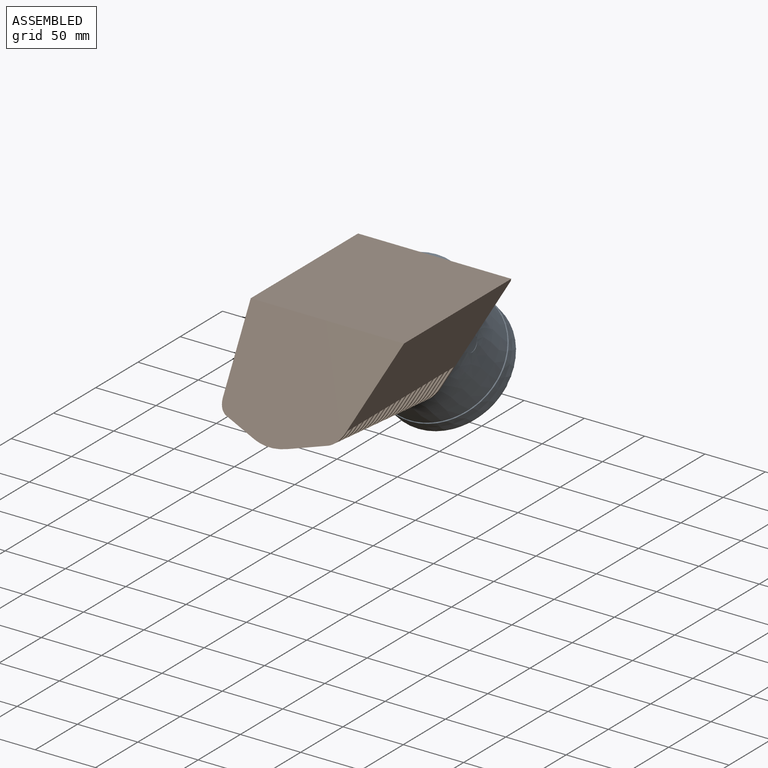
[diagram: assembled view]
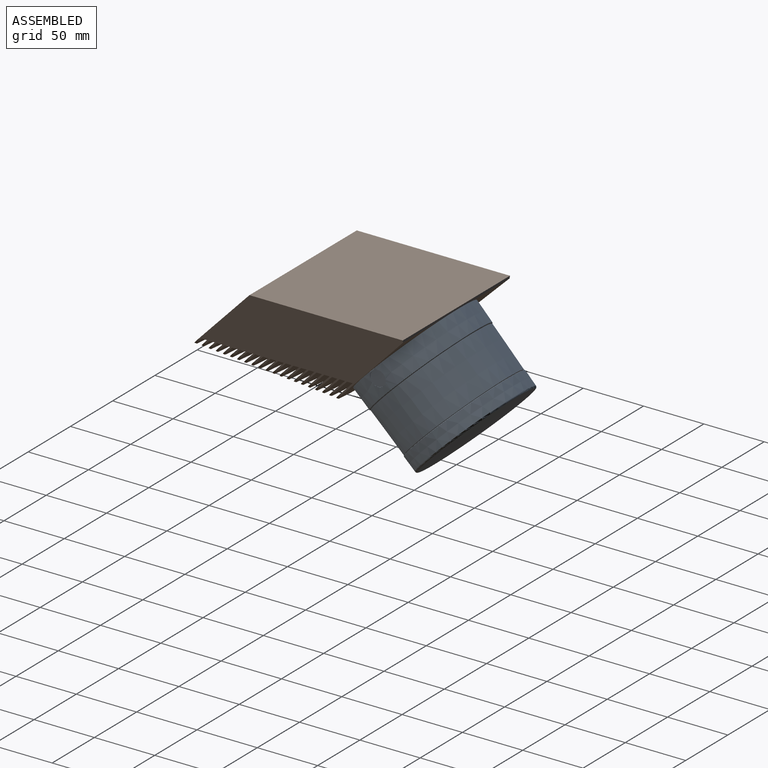
[diagram: assembled view, second angle]
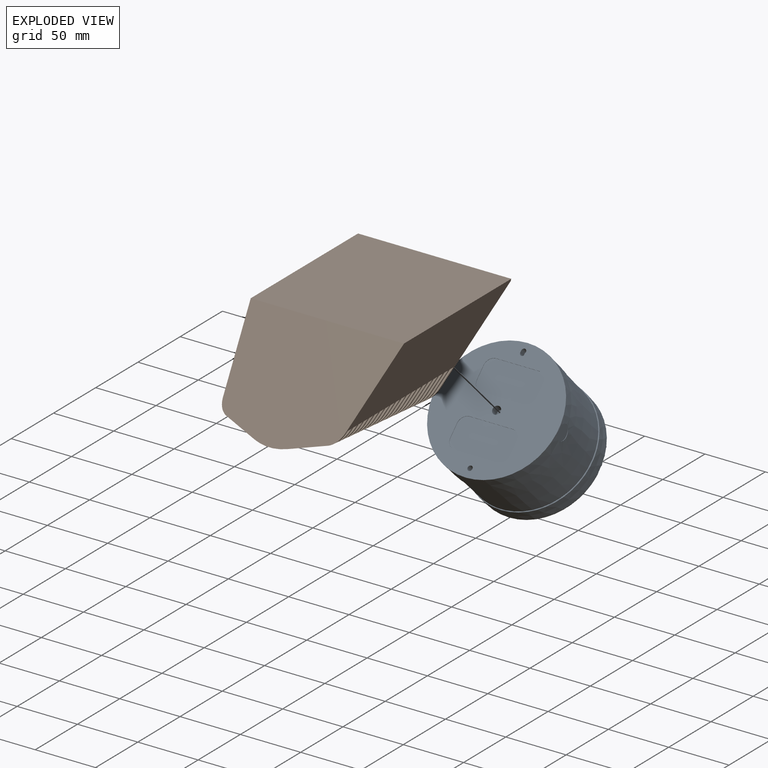
[diagram: exploded view]
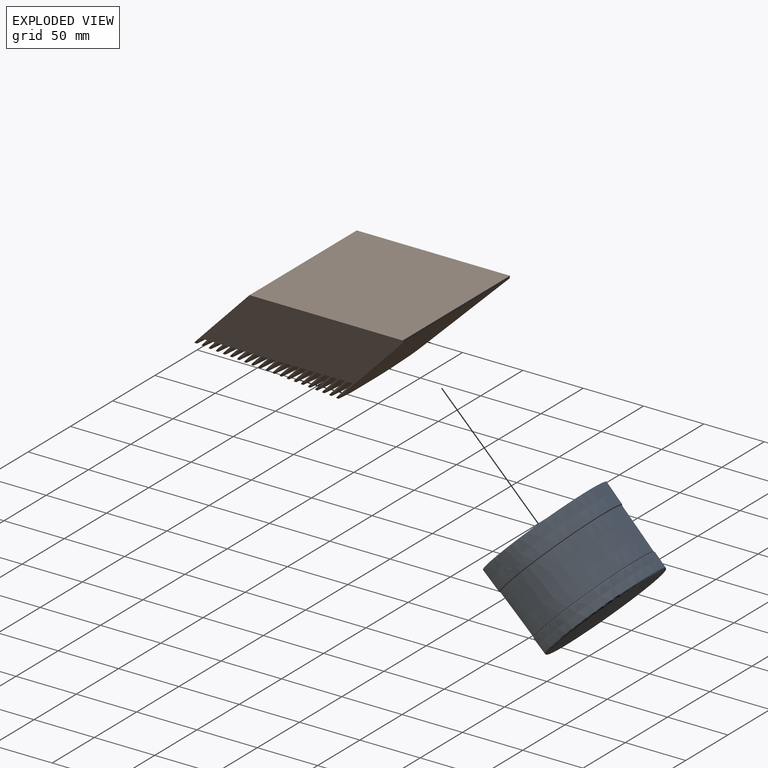
[diagram: exploded view, second angle]
ASSEMBLY  parts=2 mates=2
PART A: 44 faces, bbox 109.2x72.7x109.2 mm
  f0: cone r=51.31mm half-angle=1deg, axis (0,-1,0), area 5910.6mm2, adj f1,f2,f42
  f1: cone r=51.18mm half-angle=45deg, axis (0,-1,0), area 58.9mm2, adj f0,f14
  f2: plane 103.27x103.27mm, normal (0,-1,0), area 5897mm2, adj f0,f15,f17,f19,f20,f21,f22,f24
  f3: plane 2.66x2.66mm, normal (0,1,0), area 5.6mm2, adj f4
  f4: cone r=1.33mm half-angle=89.2deg, axis (0,-1,0), area 7589.8mm2, adj f3,f5
  f5: torus R=49.15mm, axis (0,1,0), area 614.1mm2, adj f4,f6
  f6: cone r=50.42mm half-angle=1deg, axis (0,-1,0), area 4080.4mm2, adj f5,f7
  f7: cone r=50.65mm half-angle=44deg, axis (0,1,0), area 56.1mm2, adj f6,f8
  f8: plane 101.05x101.05mm, normal (0,-1,0), area 1268.5mm2, adj f7,f9
  f9: cylinder r=46.35mm len=92.71mm, axis (0,1,0), area 145.6mm2, adj f8,f10
  f10: plane 100.27x100.27mm, normal (0,1,0), area 1145.8mm2, adj f9,f11
  f11: cone r=50.13mm half-angle=1deg, axis (0,-1,0), area 12083.2mm2, adj f10,f12
  f12: plane 101.6x101.6mm, normal (0,-1,0), area 1226.6mm2, adj f11,f13
  f13: cylinder r=46.8mm len=93.6mm, axis (0,1,0), area 147mm2, adj f12,f14
  f14: plane 102.36x102.36mm, normal (0,1,0), area 1348.7mm2, adj f1,f13
  f15: cylinder r=3.38mm len=7.14mm, axis (0,-1,0), area 151.6mm2, adj f2,f16
  f16: plane 6.76x6.76mm, normal (0,-1,0), area 35.9mm2, adj f15
  f17: cylinder r=2mm len=5.59mm, axis (0,-1,0), area 70.1mm2, adj f2,f18
  f18: plane 4x4mm, normal (0,-1,0), area 12.5mm2, adj f17
  f19: cylinder r=2mm len=5.59mm, axis (0,-1,0), area 35.1mm2, adj f2,f20,f22,f23
  f20: plane 5.59x1.52mm, normal (-1,0,0), area 8.5mm2, adj f2,f19,f21,f23
  f21: cylinder r=2mm len=5.59mm, axis (0,-1,0), area 35.1mm2, adj f2,f20,f22,f23
  f22: plane 5.59x1.52mm, normal (1,0,0), area 8.5mm2, adj f2,f19,f21,f23
  f23: plane 5.52x4mm, normal (0,-1,0), area 18.6mm2, adj f19,f20,f21,f22
  f24: cylinder r=7.14mm len=7.14mm, axis (0,-1,0), area 2.9mm2, adj f2,f25,f31,f32
  f25: plane 34.93x0.25mm, normal (0,0,1), area 8.9mm2, adj f2,f24,f26,f32
  f26: cylinder r=7.14mm len=7.14mm, axis (0,-1,0), area 2.9mm2, adj f2,f25,f27,f32
  f27: plane 11.11x0.25mm, normal (1,0,0), area 2.8mm2, adj f2,f26,f28,f32
  f28: cylinder r=7.14mm len=7.14mm, axis (0,-1,0), area 2.9mm2, adj f2,f27,f29,f32
  f29: plane 34.93x0.25mm, normal (0,0,-1), area 8.9mm2, adj f2,f28,f30,f32
  f30: cylinder r=7.14mm len=7.14mm, axis (0,-1,0), area 2.9mm2, adj f2,f29,f31,f32
  f31: plane 11.11x0.25mm, normal (-1,0,0), area 2.8mm2, adj f2,f24,f30,f32
  f32: plane 49.21x25.4mm, normal (0,-1,0), area 1206.2mm2, adj f24,f25,f26,f27,f28,f29,f30,f31
  f33: cylinder r=7.14mm len=7.14mm, axis (0,-1,0), area 2.9mm2, adj f2,f34,f40,f41
  f34: plane 11.11x0.25mm, normal (-1,0,0), area 2.8mm2, adj f2,f33,f35,f41
  f35: cylinder r=7.14mm len=7.14mm, axis (0,-1,0), area 2.9mm2, adj f2,f34,f36,f41
  f36: plane 34.93x0.25mm, normal (0,0,1), area 8.9mm2, adj f2,f35,f37,f41
  f37: cylinder r=7.14mm len=7.14mm, axis (0,-1,0), area 2.9mm2, adj f2,f36,f38,f41
  f38: plane 11.11x0.25mm, normal (1,0,0), area 2.8mm2, adj f2,f37,f39,f41
  f39: cylinder r=7.14mm len=7.14mm, axis (0,-1,0), area 2.9mm2, adj f2,f38,f40,f41
  f40: plane 34.93x0.25mm, normal (0,0,-1), area 8.9mm2, adj f2,f33,f39,f41
  f41: plane 49.21x25.4mm, normal (0,-1,0), area 1206.2mm2, adj f33,f34,f35,f36,f37,f38,f39,f40
  f42: cylinder r=6.35mm len=12.7mm, axis (-1,0,0), area 10.5mm2, adj f0,f43
  f43: plane 12.7x12.7mm, normal (1,0,0), area 126.7mm2, adj f42
PART B: 185 faces, bbox 127x195.6x76.2 mm
  f0: cylinder r=12.7mm len=10mm, axis (0.02,0.99,-0.1), area 22mm2, adj f4,f5,f8,f9
  f1: cylinder r=50.8mm len=27.47mm, axis (0,-1,0.09), area 45.9mm2, adj f3,f4,f8,f9
  f2: cylinder r=12.7mm len=10mm, axis (0.02,-0.99,0.1), area 22mm2, adj f3,f6,f8,f9
  f3: plane 28.26x8.93mm, normal (0.27,-0.09,-0.96), area 48.4mm2, adj f1,f2,f8,f9
  f4: plane 28.26x8.93mm, normal (-0.27,-0.09,-0.96), area 48.4mm2, adj f0,f1,f8,f9
  f5: plane 178.18x62.89mm, normal (-0.97,0,-0.24), area 6937mm2, adj f0,f7,f8,f9,f10,f15,f16,f17
  f6: plane 178.18x62.89mm, normal (0.97,0,-0.24), area 6937mm2, adj f2,f7,f8,f9,f12,f15,f16,f17
  f7: plane 127x127mm, normal (0,0,1), area 16129mm2, adj f5,f6,f8,f66
  f8: plane 127x68.58mm, normal (0,-0.71,0.71), area 10022.1mm2, adj f0,f1,f2,f3,f4,f5,f6,f7
  f9: plane 101.86x18.45mm, normal (0,0.71,-0.71), area 1905.2mm2, adj f0,f1,f2,f3,f4,f5,f6,f184
  f10: cylinder r=12.7mm len=10mm, axis (0.02,0.99,-0.1), area 22mm2, adj f5,f14,f15,f16
  f11: cylinder r=50.8mm len=27.47mm, axis (0,-1,0.09), area 45.9mm2, adj f13,f14,f15,f16
  f12: cylinder r=12.7mm len=10mm, axis (0.02,-0.99,0.1), area 22mm2, adj f6,f13,f15,f16
  f13: plane 28.12x8.89mm, normal (0.27,-0.09,-0.96), area 48.2mm2, adj f11,f12,f15,f16
  f14: plane 28.12x8.89mm, normal (-0.27,-0.09,-0.96), area 48.2mm2, adj f10,f11,f15,f16
  f15: plane 101.86x18.83mm, normal (0,-0.71,0.71), area 1958.9mm2, adj f5,f6,f10,f11,f12,f13,f14,f184
  f16: plane 101.86x18.99mm, normal (0,0.71,-0.71), area 1980mm2, adj f5,f6,f10,f11,f12,f13,f14,f17
  f17: plane 101.86x4.55mm, normal (0,0,-1), area 463.8mm2, adj f5,f6,f16,f178
  f18: cylinder r=12.7mm len=10mm, axis (0.02,0.99,-0.1), area 22mm2, adj f5,f22,f23,f24
  f19: cylinder r=50.8mm len=27.47mm, axis (0,-1,0.09), area 45.9mm2, adj f21,f22,f23,f24
  f20: cylinder r=12.7mm len=10mm, axis (0.02,-0.99,0.1), area 22mm2, adj f6,f21,f23,f24
  f21: plane 27.83x8.82mm, normal (0.27,-0.09,-0.96), area 47.7mm2, adj f19,f20,f23,f24
  f22: plane 27.83x8.82mm, normal (-0.27,-0.09,-0.96), area 47.7mm2, adj f18,f19,f23,f24
  f23: plane 101.86x19.91mm, normal (0,-0.71,0.71), area 2107.9mm2, adj f5,f6,f18,f19,f20,f21,f22,f176
  f24: plane 101.86x20.07mm, normal (0,0.71,-0.71), area 2128.9mm2, adj f5,f6,f18,f19,f20,f21,f22,f25
  f25: plane 101.86x4.55mm, normal (0,0,-1), area 463.8mm2, adj f5,f6,f24,f170
  f26: cylinder r=12.7mm len=10mm, axis (0.02,0.99,-0.1), area 22mm2, adj f5,f30,f31,f32
  f27: cylinder r=50.8mm len=27.47mm, axis (0,-1,0.09), area 45.9mm2, adj f29,f30,f31,f32
  f28: cylinder r=12.7mm len=10mm, axis (0.02,-0.99,0.1), area 22mm2, adj f6,f29,f31,f32
  f29: plane 27.54x8.74mm, normal (0.27,-0.09,-0.96), area 47.2mm2, adj f27,f28,f31,f32
  f30: plane 27.54x8.74mm, normal (-0.27,-0.09,-0.96), area 47.2mm2, adj f26,f27,f31,f32
  f31: plane 101.86x21mm, normal (0,-0.71,0.71), area 2256mm2, adj f5,f6,f26,f27,f28,f29,f30,f168
  f32: plane 101.86x21.15mm, normal (0,0.71,-0.71), area 2276.9mm2, adj f5,f6,f26,f27,f28,f29,f30,f33
  f33: plane 101.86x4.55mm, normal (0,0,-1), area 463.8mm2, adj f5,f6,f32,f162
  f34: cylinder r=12.7mm len=10mm, axis (0.02,0.99,-0.1), area 22mm2, adj f5,f38,f39,f40
  f35: cylinder r=50.8mm len=27.47mm, axis (0,-1,0.09), area 45.9mm2, adj f37,f38,f39,f40
  f36: cylinder r=12.7mm len=10mm, axis (0.02,-0.99,0.1), area 22mm2, adj f6,f37,f39,f40
  f37: plane 27.25x8.67mm, normal (0.27,-0.09,-0.96), area 46.7mm2, adj f35,f36,f39,f40
  f38: plane 27.25x8.67mm, normal (-0.27,-0.09,-0.96), area 46.7mm2, adj f34,f35,f39,f40
  f39: plane 101.86x22.08mm, normal (0,-0.71,0.71), area 2403.3mm2, adj f5,f6,f34,f35,f36,f37,f38,f160
  f40: plane 101.86x22.23mm, normal (0,0.71,-0.71), area 2424mm2, adj f5,f6,f34,f35,f36,f37,f38,f41
  f41: plane 101.86x4.55mm, normal (0,0,-1), area 463.8mm2, adj f5,f6,f40,f154
  f42: cylinder r=12.7mm len=10mm, axis (0.02,0.99,-0.1), area 22mm2, adj f5,f46,f47,f48
  f43: cylinder r=50.8mm len=27.47mm, axis (0,-1,0.09), area 45.9mm2, adj f45,f46,f47,f48
  f44: cylinder r=12.7mm len=10mm, axis (0.02,-0.99,0.1), area 22mm2, adj f6,f45,f47,f48
  f45: plane 26.96x8.59mm, normal (0.27,-0.09,-0.96), area 46.2mm2, adj f43,f44,f47,f48
  f46: plane 26.96x8.59mm, normal (-0.27,-0.09,-0.96), area 46.2mm2, adj f42,f43,f47,f48
  f47: plane 101.86x23.16mm, normal (0,-0.71,0.71), area 2549.7mm2, adj f5,f6,f42,f43,f44,f45,f46,f152
  f48: plane 101.86x23.31mm, normal (0,0.71,-0.71), area 2570.3mm2, adj f5,f6,f42,f43,f44,f45,f46,f49
  f49: plane 101.86x4.55mm, normal (0,0,-1), area 463.8mm2, adj f5,f6,f48,f146
  f50: plane 26.68x8.52mm, normal (-0.27,-0.09,-0.96), area 45.7mm2, adj f52,f54,f55,f56
  f51: plane 26.68x8.52mm, normal (0.27,-0.09,-0.96), area 45.7mm2, adj f52,f53,f55,f56
  f52: cylinder r=50.8mm len=27.47mm, axis (0,-1,0.09), area 45.9mm2, adj f50,f51,f55,f56
  f53: cylinder r=12.7mm len=10mm, axis (0.02,-0.99,0.1), area 22mm2, adj f6,f51,f55,f56
  f54: cylinder r=12.7mm len=10mm, axis (0.02,0.99,-0.1), area 22mm2, adj f5,f50,f55,f56
  f55: plane 101.86x24.24mm, normal (0,-0.71,0.71), area 2695.1mm2, adj f5,f6,f50,f51,f52,f53,f54,f144
  f56: plane 101.86x24.39mm, normal (0,0.71,-0.71), area 2715.6mm2, adj f5,f6,f50,f51,f52,f53,f54,f57
  f57: plane 101.86x4.55mm, normal (0,0,-1), area 463.8mm2, adj f5,f6,f56,f138
  f58: cylinder r=12.7mm len=10mm, axis (0.02,0.99,-0.1), area 22mm2, adj f5,f62,f63,f64
  f59: cylinder r=50.8mm len=27.47mm, axis (0,-1,0.09), area 45.9mm2, adj f61,f62,f63,f64
  f60: cylinder r=12.7mm len=10mm, axis (0.02,-0.99,0.1), area 22mm2, adj f6,f61,f63,f64
  f61: plane 26.39x8.44mm, normal (0.27,-0.09,-0.96), area 45.2mm2, adj f59,f60,f63,f64
  f62: plane 26.39x8.44mm, normal (-0.27,-0.09,-0.96), area 45.2mm2, adj f58,f59,f63,f64
  f63: plane 101.86x25.32mm, normal (0,-0.71,0.71), area 2839.8mm2, adj f5,f6,f58,f59,f60,f61,f62,f136
  f64: plane 101.86x25.47mm, normal (0,0.71,-0.71), area 2860.1mm2, adj f5,f6,f58,f59,f60,f61,f62,f65
  f65: plane 101.86x4.55mm, normal (0,0,-1), area 463.8mm2, adj f5,f6,f64,f128
  f66: plane 127x1.8mm, normal (0,1,0), area 227.3mm2, adj f5,f6,f7,f75
  f67: cylinder r=12.7mm len=10mm, axis (0.02,0.99,-0.1), area 22mm2, adj f5,f69,f74,f75
  f68: cylinder r=50.8mm len=16.51mm, axis (-0.31,0.95,0), area 27.7mm2, adj f69,f73,f74,f75
  f69: plane 11.63x4.63mm, normal (-0.27,-0.09,-0.96), area 19.4mm2, adj f67,f68,f74,f75
  f70: cylinder r=50.8mm len=16.51mm, axis (-0.31,-0.95,0), area 27.7mm2, adj f72,f73,f74,f75
  f71: cylinder r=12.7mm len=10mm, axis (0.02,-0.99,0.1), area 22mm2, adj f6,f72,f74,f75
  f72: plane 11.63x4.63mm, normal (0.27,-0.09,-0.96), area 19.4mm2, adj f70,f71,f74,f75
  f73: plane 24.31x1.8mm, normal (0,0,-1), area 42.6mm2, adj f68,f70,f74,f75
  f74: plane 101.86x25.91mm, normal (0,-0.71,0.71), area 3218.3mm2, adj f5,f6,f67,f68,f69,f70,f71,f72
  f75: plane 126.1x74.4mm, normal (0,0.71,-0.71), area 11046.4mm2, adj f5,f6,f66,f67,f68,f69,f70,f71
  f76: cylinder r=12.7mm len=10mm, axis (0.02,0.99,-0.1), area 22mm2, adj f5,f78,f83,f84
  f77: cylinder r=50.8mm len=16.51mm, axis (-0.31,0.95,0), area 27.7mm2, adj f78,f82,f83,f84
  f78: plane 22.81x7.52mm, normal (-0.27,-0.09,-0.96), area 38.6mm2, adj f76,f77,f83,f84
  f79: cylinder r=50.8mm len=16.51mm, axis (-0.31,-0.95,0), area 27.7mm2, adj f81,f82,f83,f84
  f80: cylinder r=12.7mm len=10mm, axis (0.02,-0.99,0.1), area 22mm2, adj f6,f81,f83,f84
  f81: plane 22.81x7.52mm, normal (0.27,-0.09,-0.96), area 38.6mm2, adj f79,f80,f83,f84
  f82: plane 3.39x1.8mm, normal (0,0,-1), area 5mm2, adj f77,f79,f83,f84
  f83: plane 101.86x25.91mm, normal (0,-0.71,0.71), area 2970.6mm2, adj f5,f6,f76,f77,f78,f79,f80,f81
  f84: plane 101.86x25.91mm, normal (0,0.71,-0.71), area 2986.9mm2, adj f5,f6,f76,f77,f78,f79,f80,f81
  f85: plane 101.86x4.55mm, normal (0,0,-1), area 463.8mm2, adj f5,f6,f84,f118
  f86: cylinder r=12.7mm len=10mm, axis (0.02,0.99,-0.1), area 22mm2, adj f5,f88,f93,f94
  f87: cylinder r=50.8mm len=16.51mm, axis (-0.31,0.95,0), area 27.7mm2, adj f88,f92,f93,f94
  f88: plane 18.34x6.37mm, normal (-0.27,-0.09,-0.96), area 30.9mm2, adj f86,f87,f93,f94
  f89: cylinder r=50.8mm len=16.51mm, axis (-0.31,-0.95,0), area 27.7mm2, adj f91,f92,f93,f94
  f90: cylinder r=12.7mm len=10mm, axis (0.02,-0.99,0.1), area 22mm2, adj f6,f91,f93,f94
  f91: plane 18.34x6.37mm, normal (0.27,-0.09,-0.96), area 30.9mm2, adj f89,f90,f93,f94
  f92: plane 11.76x1.8mm, normal (0,0,-1), area 20.1mm2, adj f87,f89,f93,f94
  f93: plane 101.86x25.91mm, normal (0,-0.71,0.71), area 3079.9mm2, adj f5,f6,f86,f87,f88,f89,f90,f91
  f94: plane 101.86x25.91mm, normal (0,0.71,-0.71), area 3094.3mm2, adj f5,f6,f86,f87,f88,f89,f90,f91
  f95: plane 101.86x4.55mm, normal (0,0,-1), area 463.8mm2, adj f5,f6,f94,f108
  f96: cylinder r=12.7mm len=10mm, axis (0.02,0.99,-0.1), area 22mm2, adj f5,f98,f103,f104
  f97: cylinder r=50.8mm len=16.51mm, axis (-0.31,0.95,0), area 27.7mm2, adj f98,f102,f103,f104
  f98: plane 13.87x5.21mm, normal (-0.27,-0.09,-0.96), area 23.2mm2, adj f96,f97,f103,f104
  f99: cylinder r=50.8mm len=16.51mm, axis (-0.31,-0.95,0), area 27.7mm2, adj f101,f102,f103,f104
  f100: cylinder r=12.7mm len=10mm, axis (0.02,-0.99,0.1), area 22mm2, adj f6,f101,f103,f104
  f101: plane 13.87x5.21mm, normal (0.27,-0.09,-0.96), area 23.2mm2, adj f99,f100,f103,f104
  f102: plane 20.13x1.8mm, normal (0,0,-1), area 35.1mm2, adj f97,f99,f103,f104
  f103: plane 101.86x25.91mm, normal (0,-0.71,0.71), area 3175.6mm2, adj f5,f6,f96,f97,f98,f99,f100,f101
  f104: plane 101.86x25.91mm, normal (0,0.71,-0.71), area 3188mm2, adj f5,f6,f96,f97,f98,f99,f100,f101
  f105: plane 101.86x4.55mm, normal (0,0,-1), area 463.8mm2, adj f5,f6,f74,f104
  f106: plane 101.86x4.55mm, normal (0,0,-1), area 463.8mm2, adj f5,f6,f103,f107
  f107: plane 101.86x25.91mm, normal (0,0.71,-0.71), area 3142.9mm2, adj f5,f6,f106,f109,f110,f111,f112,f113
  f108: plane 101.86x25.91mm, normal (0,-0.71,0.71), area 3129.5mm2, adj f5,f6,f95,f109,f110,f111,f112,f113
  f109: plane 15.94x1.8mm, normal (0,0,-1), area 27.6mm2, adj f107,f108,f112,f114
  f110: plane 16.1x5.79mm, normal (0.27,-0.09,-0.96), area 27.1mm2, adj f107,f108,f111,f112
  f111: cylinder r=12.7mm len=10mm, axis (0.02,-0.99,0.1), area 22mm2, adj f6,f107,f108,f110
  f112: cylinder r=50.8mm len=16.51mm, axis (-0.31,-0.95,0), area 27.7mm2, adj f107,f108,f109,f110
  f113: plane 16.1x5.79mm, normal (-0.27,-0.09,-0.96), area 27.1mm2, adj f107,f108,f114,f115
  f114: cylinder r=50.8mm len=16.51mm, axis (-0.31,0.95,0), area 27.7mm2, adj f107,f108,f109,f113
  f115: cylinder r=12.7mm len=10mm, axis (0.02,0.99,-0.1), area 22mm2, adj f5,f107,f108,f113
  f116: plane 101.86x4.55mm, normal (0,0,-1), area 463.8mm2, adj f5,f6,f93,f117
  f117: plane 101.86x25.91mm, normal (0,0.71,-0.71), area 3042.3mm2, adj f5,f6,f116,f119,f120,f121,f122,f123
  f118: plane 101.86x25.91mm, normal (0,-0.71,0.71), area 3027mm2, adj f5,f6,f85,f119,f120,f121,f122,f123
  f119: plane 7.57x1.8mm, normal (0,0,-1), area 12.5mm2, adj f117,f118,f122,f124
  f120: plane 20.58x6.94mm, normal (0.27,-0.09,-0.96), area 34.7mm2, adj f117,f118,f121,f122
  f121: cylinder r=12.7mm len=10mm, axis (0.02,-0.99,0.1), area 22mm2, adj f6,f117,f118,f120
  f122: cylinder r=50.8mm len=16.51mm, axis (-0.31,-0.95,0), area 27.7mm2, adj f117,f118,f119,f120
  f123: plane 20.58x6.94mm, normal (-0.27,-0.09,-0.96), area 34.7mm2, adj f117,f118,f124,f125
  f124: cylinder r=50.8mm len=16.51mm, axis (-0.31,0.95,0), area 27.7mm2, adj f117,f118,f119,f123
  f125: cylinder r=12.7mm len=10mm, axis (0.02,0.99,-0.1), area 22mm2, adj f5,f117,f118,f123
  f126: plane 101.86x4.55mm, normal (0,0,-1), area 463.8mm2, adj f5,f6,f83,f127
  f127: plane 101.86x25.9mm, normal (0,0.71,-0.71), area 2928mm2, adj f5,f6,f126,f129,f130,f131,f132,f133
  f128: plane 101.86x25.83mm, normal (0,-0.71,0.71), area 2910.3mm2, adj f5,f6,f65,f129,f130,f131,f132,f133
  f129: plane 25.05x8.1mm, normal (-0.27,-0.09,-0.96), area 42.4mm2, adj f127,f128,f132,f135
  f130: plane 25.05x8.1mm, normal (0.27,-0.09,-0.96), area 42.4mm2, adj f127,f128,f131,f134
  f131: cylinder r=12.7mm len=10mm, axis (0.02,-0.99,0.1), area 22mm2, adj f6,f127,f128,f130
  f132: cylinder r=50.8mm len=12.21mm, axis (-0.31,0.95,0), area 17mm2, adj f127,f128,f129,f133
  f133: sphere r=50.8mm, area 18.7mm2, adj f127,f128,f132,f134
  f134: cylinder r=50.8mm len=12.21mm, axis (-0.31,-0.95,0), area 17mm2, adj f127,f128,f130,f133
  f135: cylinder r=12.7mm len=10mm, axis (0.02,0.99,-0.1), area 22mm2, adj f5,f127,f128,f129
  f136: plane 101.86x4.55mm, normal (0,0,-1), area 463.8mm2, adj f5,f6,f63,f137
  f137: plane 101.86x24.93mm, normal (0,0.71,-0.71), area 2788mm2, adj f5,f6,f136,f139,f140,f141,f142,f143
  f138: plane 101.86x24.78mm, normal (0,-0.71,0.71), area 2767.6mm2, adj f5,f6,f57,f139,f140,f141,f142,f143
  f139: plane 26.53x8.48mm, normal (-0.27,-0.09,-0.96), area 45.4mm2, adj f137,f138,f142,f143
  f140: plane 26.53x8.48mm, normal (0.27,-0.09,-0.96), area 45.4mm2, adj f137,f138,f141,f142
  f141: cylinder r=12.7mm len=10mm, axis (0.02,-0.99,0.1), area 22mm2, adj f6,f137,f138,f140
  f142: cylinder r=50.8mm len=27.47mm, axis (0,-1,0.09), area 45.9mm2, adj f137,f138,f139,f140
  f143: cylinder r=12.7mm len=10mm, axis (0.02,0.99,-0.1), area 22mm2, adj f5,f137,f138,f139
  f144: plane 101.86x4.55mm, normal (0,0,-1), area 463.8mm2, adj f5,f6,f55,f145
  f145: plane 101.86x23.85mm, normal (0,0.71,-0.71), area 2643.1mm2, adj f5,f6,f144,f147,f148,f149,f150,f151
  f146: plane 101.86x23.7mm, normal (0,-0.71,0.71), area 2622.5mm2, adj f5,f6,f49,f147,f148,f149,f150,f151
  f147: plane 26.82x8.55mm, normal (-0.27,-0.09,-0.96), area 45.9mm2, adj f145,f146,f150,f151
  f148: plane 26.82x8.55mm, normal (0.27,-0.09,-0.96), area 45.9mm2, adj f145,f146,f149,f150
  f149: cylinder r=12.7mm len=10mm, axis (0.02,-0.99,0.1), area 22mm2, adj f6,f145,f146,f148
  f150: cylinder r=50.8mm len=27.47mm, axis (0,-1,0.09), area 45.9mm2, adj f145,f146,f147,f148
  f151: cylinder r=12.7mm len=10mm, axis (0.02,0.99,-0.1), area 22mm2, adj f5,f145,f146,f147
  f152: plane 101.86x4.55mm, normal (0,0,-1), area 463.8mm2, adj f5,f6,f47,f153
  f153: plane 101.86x22.77mm, normal (0,0.71,-0.71), area 2497.3mm2, adj f5,f6,f152,f155,f156,f157,f158,f159
  f154: plane 101.86x22.62mm, normal (0,-0.71,0.71), area 2476.6mm2, adj f5,f6,f41,f155,f156,f157,f158,f159
  f155: plane 27.11x8.63mm, normal (-0.27,-0.09,-0.96), area 46.4mm2, adj f153,f154,f158,f159
  f156: plane 27.11x8.63mm, normal (0.27,-0.09,-0.96), area 46.4mm2, adj f153,f154,f157,f158
  f157: cylinder r=12.7mm len=10mm, axis (0.02,-0.99,0.1), area 22mm2, adj f6,f153,f154,f156
  f158: cylinder r=50.8mm len=27.47mm, axis (0,-1,0.09), area 45.9mm2, adj f153,f154,f155,f156
  f159: cylinder r=12.7mm len=10mm, axis (0.02,0.99,-0.1), area 22mm2, adj f5,f153,f154,f155
  f160: plane 101.86x4.55mm, normal (0,0,-1), area 463.8mm2, adj f5,f6,f39,f161
  f161: plane 101.86x21.69mm, normal (0,0.71,-0.71), area 2350.6mm2, adj f5,f6,f160,f163,f164,f165,f166,f167
  f162: plane 101.86x21.54mm, normal (0,-0.71,0.71), area 2329.8mm2, adj f5,f6,f33,f163,f164,f165,f166,f167
  f163: plane 27.4x8.7mm, normal (-0.27,-0.09,-0.96), area 46.9mm2, adj f161,f162,f166,f167
  f164: plane 27.4x8.7mm, normal (0.27,-0.09,-0.96), area 46.9mm2, adj f161,f162,f165,f166
  f165: cylinder r=12.7mm len=10mm, axis (0.02,-0.99,0.1), area 22mm2, adj f6,f161,f162,f164
  f166: cylinder r=50.8mm len=27.47mm, axis (0,-1,0.09), area 45.9mm2, adj f161,f162,f163,f164
  f167: cylinder r=12.7mm len=10mm, axis (0.02,0.99,-0.1), area 22mm2, adj f5,f161,f162,f163
  f168: plane 101.86x4.55mm, normal (0,0,-1), area 463.8mm2, adj f5,f6,f31,f169
  f169: plane 101.86x20.61mm, normal (0,0.71,-0.71), area 2203mm2, adj f5,f6,f168,f171,f172,f173,f174,f175
  f170: plane 101.86x20.45mm, normal (0,-0.71,0.71), area 2182.1mm2, adj f5,f6,f25,f171,f172,f173,f174,f175
  f171: plane 27.69x8.78mm, normal (-0.27,-0.09,-0.96), area 47.4mm2, adj f169,f170,f174,f175
  f172: plane 27.69x8.78mm, normal (0.27,-0.09,-0.96), area 47.4mm2, adj f169,f170,f173,f174
  f173: cylinder r=12.7mm len=10mm, axis (0.02,-0.99,0.1), area 22mm2, adj f6,f169,f170,f172
  f174: cylinder r=50.8mm len=27.47mm, axis (0,-1,0.09), area 45.9mm2, adj f169,f170,f171,f172
  f175: cylinder r=12.7mm len=10mm, axis (0.02,0.99,-0.1), area 22mm2, adj f5,f169,f170,f171
  f176: plane 101.86x4.55mm, normal (0,0,-1), area 463.8mm2, adj f5,f6,f23,f177
  f177: plane 101.86x19.53mm, normal (0,0.71,-0.71), area 2054.6mm2, adj f5,f6,f176,f179,f180,f181,f182,f183
  f178: plane 101.86x19.37mm, normal (0,-0.71,0.71), area 2033.5mm2, adj f5,f6,f17,f179,f180,f181,f182,f183
  f179: plane 27.97x8.85mm, normal (-0.27,-0.09,-0.96), area 47.9mm2, adj f177,f178,f182,f183
  f180: plane 27.97x8.85mm, normal (0.27,-0.09,-0.96), area 47.9mm2, adj f177,f178,f181,f182
  f181: cylinder r=12.7mm len=10mm, axis (0.02,-0.99,0.1), area 22mm2, adj f6,f177,f178,f180
  f182: cylinder r=50.8mm len=27.47mm, axis (0,-1,0.09), area 45.9mm2, adj f177,f178,f179,f180
  f183: cylinder r=12.7mm len=10mm, axis (0.02,0.99,-0.1), area 22mm2, adj f5,f177,f178,f179
  f184: plane 101.86x4.55mm, normal (0,0,-1), area 463.8mm2, adj f5,f6,f9,f15
PLACE A rot(axis=(-1,0,0),45deg) t=(-144.62,59.55,-12.13)mm
PLACE B t=(-144.62,93.72,-14.26)mm
MATE fastened B.f75 <-> A.f0  axis (0,0.71,-0.71) through (-144.62,59.55,-12.13)mm
MATE planar A.f2 <-> B.f75  axis (0,-0.71,0.71) through (-120.01,47.76,-23.91)mm
